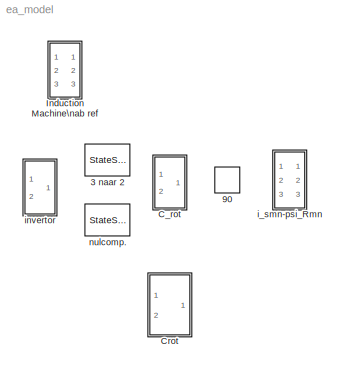
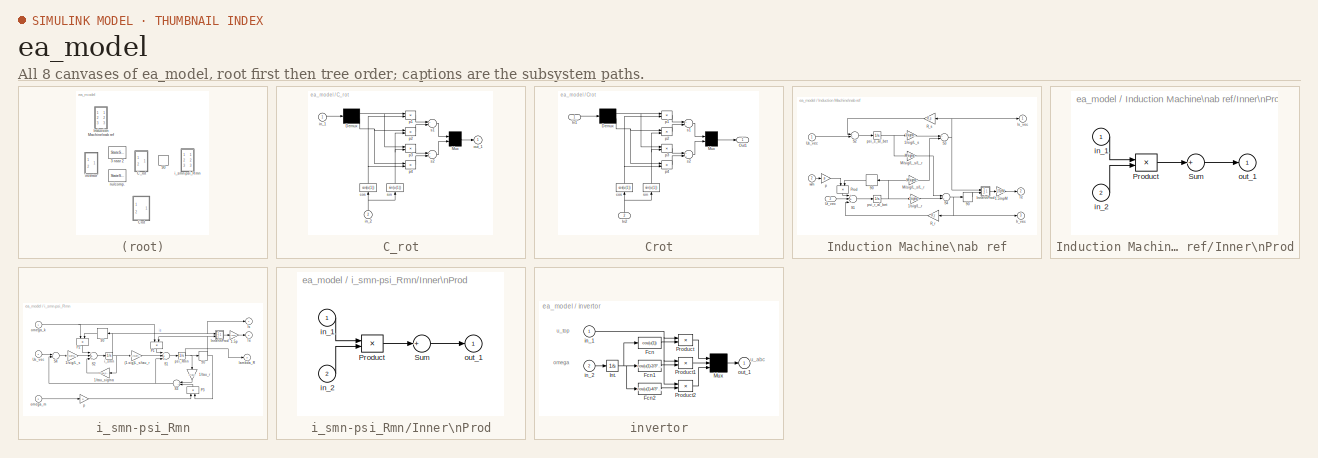
[diagram: thumbnail index - all 8 canvases of the model, root first then tree order]
MODEL ea_model
KIND model
BLOCK [StateSpace] 3 naar 2
  A = []
  B = []
  C = []
  D = K
  Ports = [1, 1]
  SID = 1
  X0 = 0
BLOCK [StateSpace] 90
  A = []
  B = []
  C = []
  D = K
  Ports = [1, 1]
  SID = 2
  X0 = 0
BLOCK [SubSystem] C_rot
  Ports = [2, 1]
  RequestExecContextInheritance = off
  SID = 3
  ShowPortLabels = none
  Variant = off
BLOCK [Demux] C_rot/Demux
  Outputs = 2
  Ports = [1, 2]
  SID = 6
BLOCK [Mux] C_rot/Mux
  Inputs = 2
  Ports = [2, 1]
  SID = 7
BLOCK [Fcn] C_rot/cos
  Expr = cos(u(1))
  SID = 8
BLOCK [Inport] C_rot/in_1
  IconDisplay = Port number
  SID = 4
BLOCK [Inport] C_rot/in_2
  IconDisplay = Port number
  Port = 2
  SID = 5
BLOCK [Outport] C_rot/out_1
  IconDisplay = Port number
  SID = 16
BLOCK [Product] C_rot/p1
  Ports = [2, 1]
  SID = 9
BLOCK [Product] C_rot/p2
  Ports = [2, 1]
  SID = 10
BLOCK [Product] C_rot/p3
  Ports = [2, 1]
  SID = 11
BLOCK [Product] C_rot/p4
  Ports = [2, 1]
  SID = 12
BLOCK [Sum] C_rot/s1
  Inputs = +-
  Ports = [2, 1]
  SID = 13
BLOCK [Sum] C_rot/s2
  Ports = [2, 1]
  SID = 14
BLOCK [Fcn] C_rot/sin
  Expr = sin(u(1))
  SID = 15
BLOCK [SubSystem] Crot
  Ports = [2, 1]
  RequestExecContextInheritance = off
  SID = 96
  Variant = off
BLOCK [Demux] Crot/Demux
  Outputs = 2
  Ports = [1, 2]
  SID = 99
BLOCK [Inport] Crot/In1
  IconDisplay = Port number
  SID = 97
BLOCK [Inport] Crot/In2
  IconDisplay = Port number
  Port = 2
  SID = 98
BLOCK [Mux] Crot/Mux
  Inputs = 2
  Ports = [2, 1]
  SID = 100
BLOCK [Outport] Crot/Out1
  IconDisplay = Port number
  SID = 109
BLOCK [Fcn] Crot/cos
  Expr = cos(u(1))
  SID = 101
BLOCK [Product] Crot/p1
  Ports = [2, 1]
  SID = 102
BLOCK [Product] Crot/p2
  Ports = [2, 1]
  SID = 103
BLOCK [Product] Crot/p3
  Ports = [2, 1]
  SID = 104
BLOCK [Product] Crot/p4
  Ports = [2, 1]
  SID = 105
BLOCK [Sum] Crot/s1
  Inputs = +-
  Ports = [2, 1]
  SID = 106
BLOCK [Sum] Crot/s2
  Ports = [2, 1]
  SID = 107
BLOCK [Fcn] Crot/sin
  Expr = sin(u(1))
  SID = 108
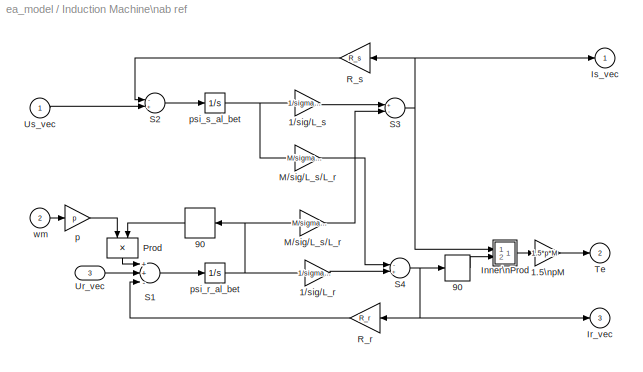
BLOCK [SubSystem] Induction Machine\nab ref
  Ports = [3, 3]
  RequestExecContextInheritance = off
  SID = 17
  ShowPortLabels = none
  Variant = off
BLOCK [Gain] Induction Machine\nab ref/1.5\npM
  Gain = 1.5*p*M
  SID = 21
BLOCK [Gain] Induction Machine\nab ref/1//sig//L_r
  Gain = 1/sigma/L_r
  SID = 22
BLOCK [Gain] Induction Machine\nab ref/1//sig//L_s 
  Gain = 1/sigma/L_s
  SID = 23
BLOCK [StateSpace] Induction Machine\nab ref/90
  A = []
  B = []
  C = []
  D = K
  Ports = [1, 1]
  SID = 24
  X0 = 0
BLOCK [StateSpace] Induction Machine\nab ref/90 
  A = []
  B = []
  C = []
  D = K
  Ports = [1, 1]
  SID = 25
  X0 = 0
BLOCK [SubSystem] Induction Machine\nab ref/Inner\nProd
  Ports = [2, 1]
  RequestExecContextInheritance = off
  SID = 26
  ShowPortLabels = none
  Variant = off
BLOCK [Product] Induction Machine\nab ref/Inner\nProd/Product
  Ports = [2, 1]
  SID = 29
BLOCK [Sum] Induction Machine\nab ref/Inner\nProd/Sum
  Inputs = +
  Ports = [1, 1]
  SID = 30
BLOCK [Inport] Induction Machine\nab ref/Inner\nProd/in_1
  IconDisplay = Port number
  SID = 27
BLOCK [Inport] Induction Machine\nab ref/Inner\nProd/in_2
  IconDisplay = Port number
  Port = 2
  SID = 28
BLOCK [Outport] Induction Machine\nab ref/Inner\nProd/out_1
  IconDisplay = Port number
  SID = 31
BLOCK [Outport] Induction Machine\nab ref/Ir_vec
  IconDisplay = Port number
  Port = 3
  SID = 46
BLOCK [Outport] Induction Machine\nab ref/Is_vec
  IconDisplay = Port number
  SID = 44
BLOCK [Gain] Induction Machine\nab ref/M//sig//L_s//L_r
  Gain = M/sigma/L_s/L_r
  SID = 32
BLOCK [Gain] Induction Machine\nab ref/M//sig//L_s//L_r 
  Gain = M/sigma/L_s/L_r
  SID = 33
BLOCK [Product] Induction Machine\nab ref/Prod
  Ports = [2, 1]
  SID = 34
BLOCK [Gain] Induction Machine\nab ref/R_r
  Gain = R_r
  SID = 35
BLOCK [Gain] Induction Machine\nab ref/R_s
  Gain = R_s
  SID = 36
BLOCK [Sum] Induction Machine\nab ref/S1
  Inputs = ++-
  Ports = [3, 1]
  SID = 37
BLOCK [Sum] Induction Machine\nab ref/S2
  Inputs = -+
  Ports = [2, 1]
  SID = 38
BLOCK [Sum] Induction Machine\nab ref/S3
  Inputs = +-
  Ports = [2, 1]
  SID = 39
BLOCK [Sum] Induction Machine\nab ref/S4
  Inputs = -+
  Ports = [2, 1]
  SID = 40
BLOCK [Outport] Induction Machine\nab ref/Te
  IconDisplay = Port number
  Port = 2
  SID = 45
BLOCK [Inport] Induction Machine\nab ref/Ur_vec
  IconDisplay = Port number
  Port = 3
  SID = 95
BLOCK [Inport] Induction Machine\nab ref/Us_vec
  IconDisplay = Port number
  SID = 18
BLOCK [Gain] Induction Machine\nab ref/p
  Gain = p
  SID = 41
BLOCK [Integrator] Induction Machine\nab ref/psi_r_al_bet
  InitialCondition = psi_r_al_bet0
  Ports = [1, 1]
  SID = 42
BLOCK [Integrator] Induction Machine\nab ref/psi_s_al_bet
  InitialCondition = psi_s_al_bet0
  Ports = [1, 1]
  SID = 43
BLOCK [Inport] Induction Machine\nab ref/wm
  IconDisplay = Port number
  Port = 2
  SID = 19
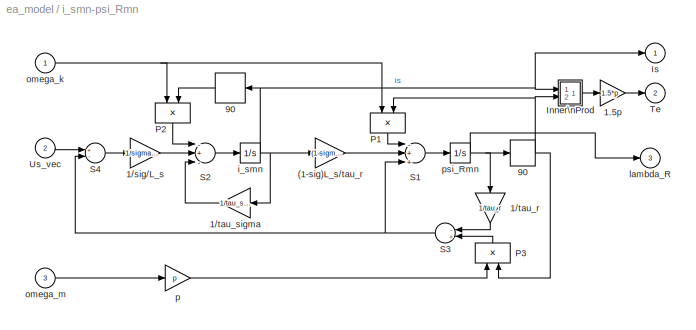
BLOCK [SubSystem] i_smn-psi_Rmn
  Ports = [3, 3]
  RequestExecContextInheritance = off
  SID = 47
  ShowPortLabels = none
  Variant = off
BLOCK [Gain] i_smn-psi_Rmn/(1-sig)L_s//tau_r
  Gain = (1-sigma)*L_s/tau_r
  SID = 51
BLOCK [Gain] i_smn-psi_Rmn/1.5p
  Gain = 1.5*p
  SID = 52
BLOCK [Gain] i_smn-psi_Rmn/1//sig//L_s
  Gain = 1/sigma/L_s
  SID = 53
BLOCK [Gain] i_smn-psi_Rmn/1//tau_r
  Gain = 1/tau_r
  SID = 54
BLOCK [Gain] i_smn-psi_Rmn/1//tau_sigma
  Gain = 1/tau_sigma
  SID = 55
BLOCK [StateSpace] i_smn-psi_Rmn/90
  A = []
  B = []
  C = []
  D = K
  Ports = [1, 1]
  SID = 56
  X0 = 0
BLOCK [StateSpace] i_smn-psi_Rmn/90 
  A = []
  B = []
  C = []
  D = K
  Ports = [1, 1]
  SID = 57
  X0 = 0
BLOCK [SubSystem] i_smn-psi_Rmn/Inner\nProd
  Ports = [2, 1]
  RequestExecContextInheritance = off
  SID = 58
  ShowPortLabels = none
  Variant = off
BLOCK [Product] i_smn-psi_Rmn/Inner\nProd/Product
  Ports = [2, 1]
  SID = 61
BLOCK [Sum] i_smn-psi_Rmn/Inner\nProd/Sum
  Inputs = +
  Ports = [1, 1]
  SID = 62
BLOCK [Inport] i_smn-psi_Rmn/Inner\nProd/in_1
  IconDisplay = Port number
  SID = 59
BLOCK [Inport] i_smn-psi_Rmn/Inner\nProd/in_2
  IconDisplay = Port number
  Port = 2
  SID = 60
BLOCK [Outport] i_smn-psi_Rmn/Inner\nProd/out_1
  IconDisplay = Port number
  SID = 63
BLOCK [Outport] i_smn-psi_Rmn/Is
  IconDisplay = Port number
  SID = 74
BLOCK [Product] i_smn-psi_Rmn/P1
  Ports = [2, 1]
  SID = 64
BLOCK [Product] i_smn-psi_Rmn/P2
  Ports = [2, 1]
  SID = 65
BLOCK [Product] i_smn-psi_Rmn/P3
  Ports = [2, 1]
  SID = 66
BLOCK [Sum] i_smn-psi_Rmn/S1
  Inputs = -++
  Ports = [3, 1]
  SID = 67
BLOCK [Sum] i_smn-psi_Rmn/S2
  Inputs = -+-
  Ports = [3, 1]
  SID = 68
BLOCK [Sum] i_smn-psi_Rmn/S3
  Inputs = -+
  Ports = [2, 1]
  SID = 69
BLOCK [Sum] i_smn-psi_Rmn/S4
  Inputs = +-
  Ports = [2, 1]
  SID = 70
BLOCK [Outport] i_smn-psi_Rmn/Te
  IconDisplay = Port number
  Port = 2
  SID = 75
BLOCK [Inport] i_smn-psi_Rmn/Us_vec
  IconDisplay = Port number
  Port = 2
  SID = 49
BLOCK [Integrator] i_smn-psi_Rmn/i_smn
  InitialCondition = i_smn0
  Ports = [1, 1]
  SID = 71
BLOCK [Outport] i_smn-psi_Rmn/lambda_R
  IconDisplay = Port number
  Port = 3
  SID = 76
BLOCK [Inport] i_smn-psi_Rmn/omega_k
  IconDisplay = Port number
  SID = 48
BLOCK [Inport] i_smn-psi_Rmn/omega_m
  IconDisplay = Port number
  Port = 3
  SID = 50
BLOCK [Gain] i_smn-psi_Rmn/p 
  Gain = p
  SID = 72
BLOCK [Integrator] i_smn-psi_Rmn/psi_Rmn
  InitialCondition = psi_Rmn0
  Ports = [1, 1]
  SID = 73
BLOCK [SubSystem] invertor
  Ports = [2, 1]
  RequestExecContextInheritance = off
  SID = 77
  ShowPortLabels = none
  Variant = off
BLOCK [Fcn] invertor/Fcn
  Expr = cos(u(1))
  SID = 80
BLOCK [Fcn] invertor/Fcn1
  Expr = cos(u(1)-2/3*pi)
  SID = 81
BLOCK [Fcn] invertor/Fcn2
  Expr = cos(u(1)-4/3*pi)
  SID = 82
BLOCK [Integrator] invertor/Int.
  Ports = [1, 1]
  SID = 83
BLOCK [Mux] invertor/Mux
  Inputs = 3
  Ports = [3, 1]
  SID = 84
BLOCK [Product] invertor/Product
  Ports = [2, 1]
  SID = 85
BLOCK [Product] invertor/Product1
  Ports = [2, 1]
  SID = 86
BLOCK [Product] invertor/Product2
  Ports = [2, 1]
  SID = 87
BLOCK [Inport] invertor/in_1
  IconDisplay = Port number
  SID = 78
BLOCK [Inport] invertor/in_2
  IconDisplay = Port number
  Port = 2
  SID = 79
BLOCK [Outport] invertor/out_1
  IconDisplay = Port number
  SID = 88
BLOCK [StateSpace] nulcomp.
  A = []
  B = []
  C = []
  D = K
  Ports = [1, 1]
  SID = 92
  X0 = 0
ANNOTATION invertor: omega
ANNOTATION invertor: u_abc
ANNOTATION invertor: u_top
NET C_rot/Demux:1 -> C_rot/p1:1, C_rot/p3:1
NET C_rot/Demux:2 -> C_rot/p2:1, C_rot/p4:1
LINE C_rot/Mux:1 -> C_rot/out_1:1
NET C_rot/cos:1 -> C_rot/p1:2, C_rot/p4:2
LINE C_rot/in_1:1 -> C_rot/Demux:1
NET C_rot/in_2:1 -> C_rot/cos:1, C_rot/sin:1
LINE C_rot/p1:1 -> C_rot/s1:1
LINE C_rot/p2:1 -> C_rot/s1:2
LINE C_rot/p3:1 -> C_rot/s2:1
LINE C_rot/p4:1 -> C_rot/s2:2
LINE C_rot/s1:1 -> C_rot/Mux:1
LINE C_rot/s2:1 -> C_rot/Mux:2
NET C_rot/sin:1 -> C_rot/p2:2, C_rot/p3:2
NET Crot/Demux:1 -> Crot/p1:1, Crot/p3:1
NET Crot/Demux:2 -> Crot/p2:1, Crot/p4:1
LINE Crot/In1:1 -> Crot/Demux:1
NET Crot/In2:1 -> Crot/cos:1, Crot/sin:1
LINE Crot/Mux:1 -> Crot/Out1:1
NET Crot/cos:1 -> Crot/p1:2, Crot/p4:2
LINE Crot/p1:1 -> Crot/s1:1
LINE Crot/p2:1 -> Crot/s1:2
LINE Crot/p3:1 -> Crot/s2:1
LINE Crot/p4:1 -> Crot/s2:2
LINE Crot/s1:1 -> Crot/Mux:1
LINE Crot/s2:1 -> Crot/Mux:2
NET Crot/sin:1 -> Crot/p2:2, Crot/p3:2
LINE Induction Machine\nab ref/1.5\npM:1 -> Induction Machine\nab ref/Te:1
LINE Induction Machine\nab ref/1//sig//L_r:1 -> Induction Machine\nab ref/S4:2
LINE Induction Machine\nab ref/1//sig//L_s :1 -> Induction Machine\nab ref/S3:1
LINE Induction Machine\nab ref/90 :1 -> Induction Machine\nab ref/Inner\nProd:2
LINE Induction Machine\nab ref/90:1 -> Induction Machine\nab ref/Prod:2
LINE Induction Machine\nab ref/Inner\nProd/Product:1 -> Induction Machine\nab ref/Inner\nProd/Sum:1
LINE Induction Machine\nab ref/Inner\nProd/Sum:1 -> Induction Machine\nab ref/Inner\nProd/out_1:1
LINE Induction Machine\nab ref/Inner\nProd/in_1:1 -> Induction Machine\nab ref/Inner\nProd/Product:1
LINE Induction Machine\nab ref/Inner\nProd/in_2:1 -> Induction Machine\nab ref/Inner\nProd/Product:2
LINE Induction Machine\nab ref/Inner\nProd:1 -> Induction Machine\nab ref/1.5\npM:1
LINE Induction Machine\nab ref/M//sig//L_s//L_r :1 -> Induction Machine\nab ref/S3:2
LINE Induction Machine\nab ref/M//sig//L_s//L_r:1 -> Induction Machine\nab ref/S4:1
LINE Induction Machine\nab ref/Prod:1 -> Induction Machine\nab ref/S1:1
LINE Induction Machine\nab ref/R_r:1 -> Induction Machine\nab ref/S1:3
LINE Induction Machine\nab ref/R_s:1 -> Induction Machine\nab ref/S2:1
LINE Induction Machine\nab ref/S1:1 -> Induction Machine\nab ref/psi_r_al_bet:1
LINE Induction Machine\nab ref/S2:1 -> Induction Machine\nab ref/psi_s_al_bet:1
NET Induction Machine\nab ref/S3:1 -> Induction Machine\nab ref/Inner\nProd:1, Induction Machine\nab ref/Is_vec:1, Induction Machine\nab ref/R_s:1
NET Induction Machine\nab ref/S4:1 -> Induction Machine\nab ref/90 :1, Induction Machine\nab ref/Ir_vec:1, Induction Machine\nab ref/R_r:1
LINE Induction Machine\nab ref/Ur_vec:1 -> Induction Machine\nab ref/S1:2
LINE Induction Machine\nab ref/Us_vec:1 -> Induction Machine\nab ref/S2:2
LINE Induction Machine\nab ref/p:1 -> Induction Machine\nab ref/Prod:1
NET Induction Machine\nab ref/psi_r_al_bet:1 -> Induction Machine\nab ref/1//sig//L_r:1, Induction Machine\nab ref/90:1, Induction Machine\nab ref/M//sig//L_s//L_r :1
NET Induction Machine\nab ref/psi_s_al_bet:1 -> Induction Machine\nab ref/1//sig//L_s :1, Induction Machine\nab ref/M//sig//L_s//L_r:1
LINE Induction Machine\nab ref/wm:1 -> Induction Machine\nab ref/p:1
LINE i_smn-psi_Rmn/(1-sig)L_s//tau_r:1 -> i_smn-psi_Rmn/S1:2
LINE i_smn-psi_Rmn/1.5p:1 -> i_smn-psi_Rmn/Te:1
LINE i_smn-psi_Rmn/1//sig//L_s:1 -> i_smn-psi_Rmn/S2:2
LINE i_smn-psi_Rmn/1//tau_r:1 -> i_smn-psi_Rmn/S3:1
LINE i_smn-psi_Rmn/1//tau_sigma:1 -> i_smn-psi_Rmn/S2:3
NET i_smn-psi_Rmn/90 :1 -> i_smn-psi_Rmn/Inner\nProd:2, i_smn-psi_Rmn/P1:2, i_smn-psi_Rmn/P3:2
LINE i_smn-psi_Rmn/90:1 -> i_smn-psi_Rmn/P2:2
LINE i_smn-psi_Rmn/Inner\nProd/Product:1 -> i_smn-psi_Rmn/Inner\nProd/Sum:1
LINE i_smn-psi_Rmn/Inner\nProd/Sum:1 -> i_smn-psi_Rmn/Inner\nProd/out_1:1
LINE i_smn-psi_Rmn/Inner\nProd/in_1:1 -> i_smn-psi_Rmn/Inner\nProd/Product:1
LINE i_smn-psi_Rmn/Inner\nProd/in_2:1 -> i_smn-psi_Rmn/Inner\nProd/Product:2
LINE i_smn-psi_Rmn/Inner\nProd:1 -> i_smn-psi_Rmn/1.5p:1
LINE i_smn-psi_Rmn/P1:1 -> i_smn-psi_Rmn/S1:1
LINE i_smn-psi_Rmn/P2:1 -> i_smn-psi_Rmn/S2:1
LINE i_smn-psi_Rmn/P3:1 -> i_smn-psi_Rmn/S3:2
LINE i_smn-psi_Rmn/S1:1 -> i_smn-psi_Rmn/psi_Rmn:1
LINE i_smn-psi_Rmn/S2:1 -> i_smn-psi_Rmn/i_smn:1
NET i_smn-psi_Rmn/S3:1 -> i_smn-psi_Rmn/S1:3, i_smn-psi_Rmn/S4:2
LINE i_smn-psi_Rmn/S4:1 -> i_smn-psi_Rmn/1//sig//L_s:1
LINE i_smn-psi_Rmn/Us_vec:1 -> i_smn-psi_Rmn/S4:1
NET i_smn-psi_Rmn/i_smn:1 -> i_smn-psi_Rmn/(1-sig)L_s//tau_r:1, i_smn-psi_Rmn/1//tau_sigma:1, i_smn-psi_Rmn/90:1, i_smn-psi_Rmn/Inner\nProd:1, i_smn-psi_Rmn/Is:1
NET i_smn-psi_Rmn/omega_k:1 -> i_smn-psi_Rmn/P1:1, i_smn-psi_Rmn/P2:1
LINE i_smn-psi_Rmn/omega_m:1 -> i_smn-psi_Rmn/p :1
LINE i_smn-psi_Rmn/p :1 -> i_smn-psi_Rmn/P3:1
NET i_smn-psi_Rmn/psi_Rmn:1 -> i_smn-psi_Rmn/1//tau_r:1, i_smn-psi_Rmn/90 :1, i_smn-psi_Rmn/lambda_R:1
LINE invertor/Fcn1:1 -> invertor/Product1:2
LINE invertor/Fcn2:1 -> invertor/Product2:2
LINE invertor/Fcn:1 -> invertor/Product:2
NET invertor/Int.:1 -> invertor/Fcn1:1, invertor/Fcn2:1, invertor/Fcn:1
LINE invertor/Mux:1 -> invertor/out_1:1
LINE invertor/Product1:1 -> invertor/Mux:2
LINE invertor/Product2:1 -> invertor/Mux:3
LINE invertor/Product:1 -> invertor/Mux:1
NET invertor/in_1:1 -> invertor/Product1:1, invertor/Product2:1, invertor/Product:1
LINE invertor/in_2:1 -> invertor/Int.:1
note: NET lines group one-source signal fan-out (src -> all destinations, sorted); 1:1 wires keep LINE
